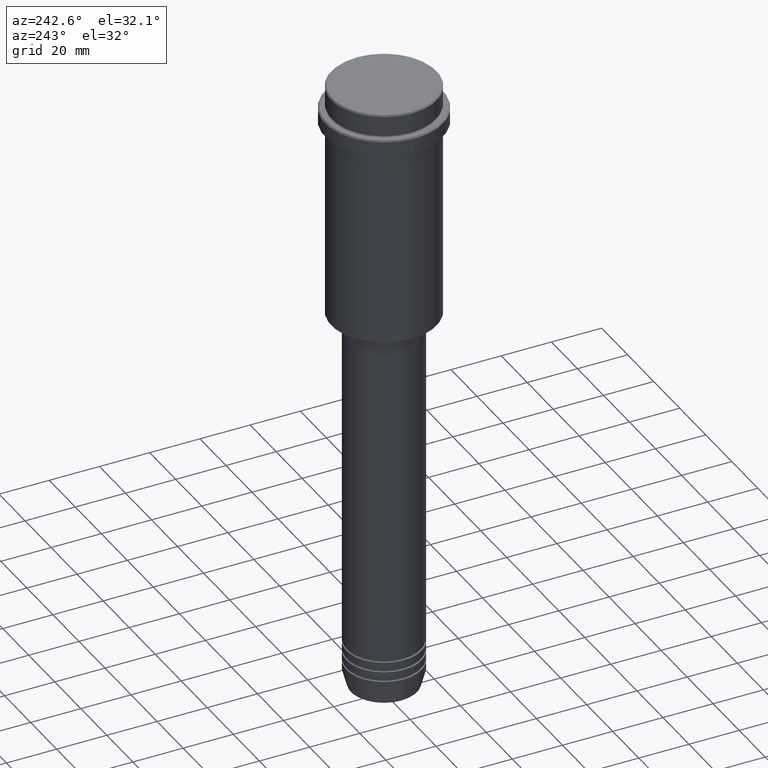
[diagram: clean part render]
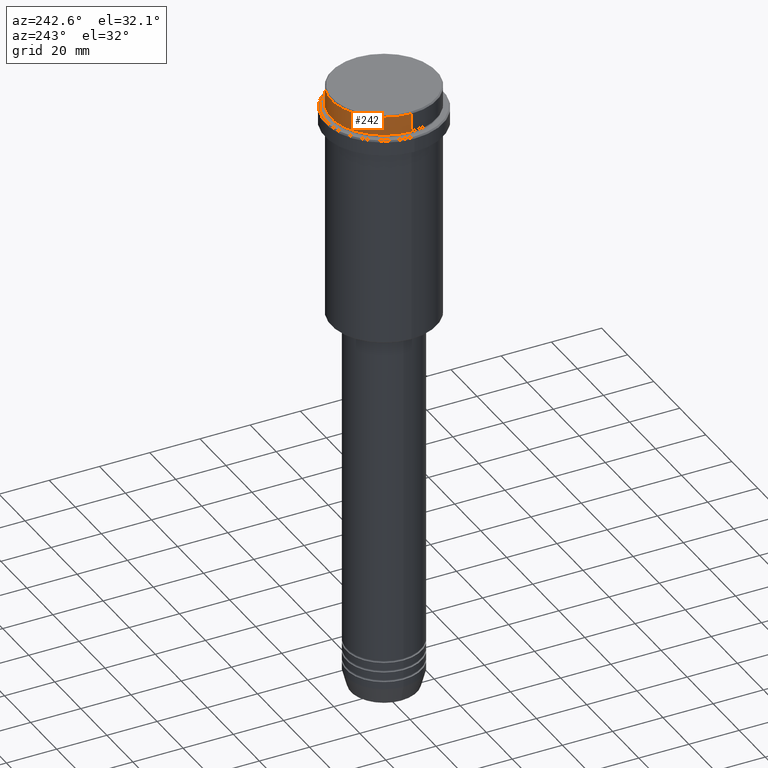
[diagram: same view with one face highlighted and labeled with its STEP entity id]
A machine part, auxiliary view. The second image highlights one B-rep face of the part: STEP entity #242.
In plain terms, the highlighted cylindrical surface (partial cylindrical patch) has radius 21 mm, axis along (-0, -0, 1).
Its self-contained STEP definition (entity closure, byte-faithful):
#97 = VECTOR ( 'NONE', #682, 1000.000000000000000 ) ;
#173 = DIRECTION ( 'NONE',  ( -0.000000000000000000, -0.000000000000000000, 1.000000000000000000 ) ) ;
#177 = CARTESIAN_POINT ( 'NONE',  ( -21.00000000000000000, 2.571758278209441661E-15, -0.4999999999999553690 ) ) ;
#202 = DIRECTION ( 'NONE',  ( 1.000000000000000000, 0.000000000000000000, 0.000000000000000000 ) ) ;
#242 = ADVANCED_FACE ( 'NONE', ( #1183 ), #281, .T. ) ;
#266 = ORIENTED_EDGE ( 'NONE', *, *, #1161, .F. ) ;
#274 = EDGE_CURVE ( 'NONE', #676, #1241, #455, .T. ) ;
#281 = CYLINDRICAL_SURFACE ( 'NONE', #1283, 21.00000000000000000 ) ;
#350 = VERTEX_POINT ( 'NONE', #762 ) ;
#429 = VERTEX_POINT ( 'NONE', #435 ) ;
#435 = CARTESIAN_POINT ( 'NONE',  ( 21.00000000000000000, 0.000000000000000000, -7.999999999999998224 ) ) ;
#455 = CIRCLE ( 'NONE', #693, 21.00000000000000000 ) ;
#458 = EDGE_LOOP ( 'NONE', ( #574, #887, #1406, #266 ) ) ;
#465 = CARTESIAN_POINT ( 'NONE',  ( -21.00000000000000000, 2.571758278209441661E-15, 0.000000000000000000 ) ) ;
#488 = CARTESIAN_POINT ( 'NONE',  ( 0.000000000000000000, 0.000000000000000000, -7.999999999999998224 ) ) ;
#552 = CIRCLE ( 'NONE', #652, 21.00000000000000000 ) ;
#574 = ORIENTED_EDGE ( 'NONE', *, *, #714, .T. ) ;
#603 = DIRECTION ( 'NONE',  ( -0.000000000000000000, -0.000000000000000000, 1.000000000000000000 ) ) ;
#652 = AXIS2_PLACEMENT_3D ( 'NONE', #488, #603, #1043 ) ;
#676 = VERTEX_POINT ( 'NONE', #177 ) ;
#682 = DIRECTION ( 'NONE',  ( -0.000000000000000000, -0.000000000000000000, 1.000000000000000000 ) ) ;
#693 = AXIS2_PLACEMENT_3D ( 'NONE', #860, #1282, #202 ) ;
#714 = EDGE_CURVE ( 'NONE', #429, #350, #552, .T. ) ;
#727 = DIRECTION ( 'NONE',  ( 1.000000000000000000, 0.000000000000000000, 0.000000000000000000 ) ) ;
#762 = CARTESIAN_POINT ( 'NONE',  ( -21.00000000000000000, 2.571758278209441661E-15, -7.999999999999998224 ) ) ;
#764 = CARTESIAN_POINT ( 'NONE',  ( 21.00000000000000000, 0.000000000000000000, -0.4999999999999553690 ) ) ;
#833 = LINE ( 'NONE', #1267, #1289 ) ;
#846 = DIRECTION ( 'NONE',  ( -0.000000000000000000, -0.000000000000000000, 1.000000000000000000 ) ) ;
#860 = CARTESIAN_POINT ( 'NONE',  ( 0.000000000000000000, 0.000000000000000000, -0.4999999999999553690 ) ) ;
#887 = ORIENTED_EDGE ( 'NONE', *, *, #1363, .T. ) ;
#1018 = LINE ( 'NONE', #465, #97 ) ;
#1043 = DIRECTION ( 'NONE',  ( 1.000000000000000000, 0.000000000000000000, 0.000000000000000000 ) ) ;
#1161 = EDGE_CURVE ( 'NONE', #429, #1241, #833, .T. ) ;
#1166 = CARTESIAN_POINT ( 'NONE',  ( 0.000000000000000000, 0.000000000000000000, 0.000000000000000000 ) ) ;
#1183 = FACE_OUTER_BOUND ( 'NONE', #458, .T. ) ;
#1241 = VERTEX_POINT ( 'NONE', #764 ) ;
#1267 = CARTESIAN_POINT ( 'NONE',  ( 21.00000000000000000, 0.000000000000000000, 0.000000000000000000 ) ) ;
#1282 = DIRECTION ( 'NONE',  ( 0.000000000000000000, 0.000000000000000000, -1.000000000000000000 ) ) ;
#1283 = AXIS2_PLACEMENT_3D ( 'NONE', #1166, #173, #727 ) ;
#1289 = VECTOR ( 'NONE', #846, 1000.000000000000000 ) ;
#1363 = EDGE_CURVE ( 'NONE', #350, #676, #1018, .T. ) ;
#1406 = ORIENTED_EDGE ( 'NONE', *, *, #274, .T. ) ;